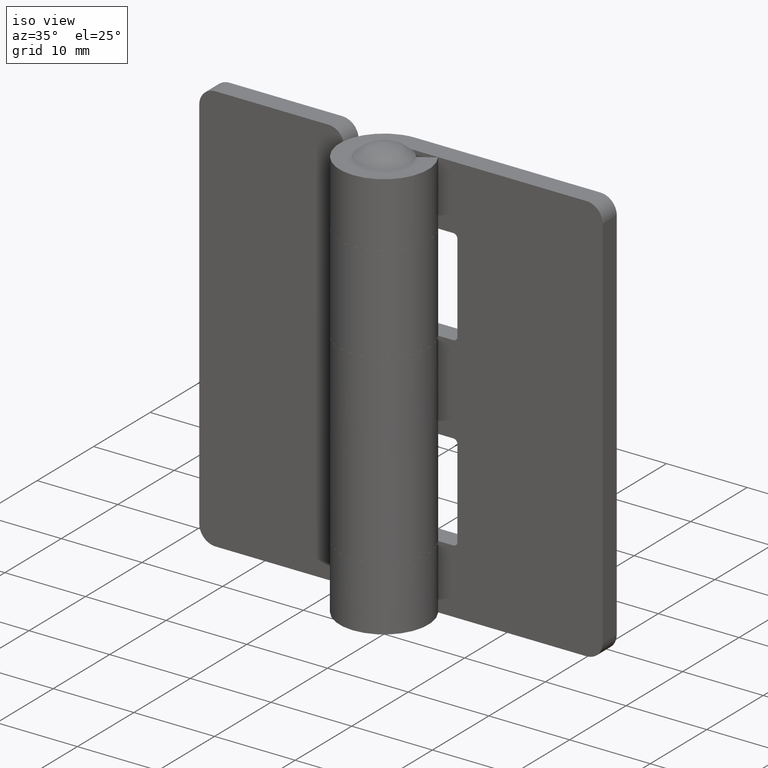
[diagram: clean part render]
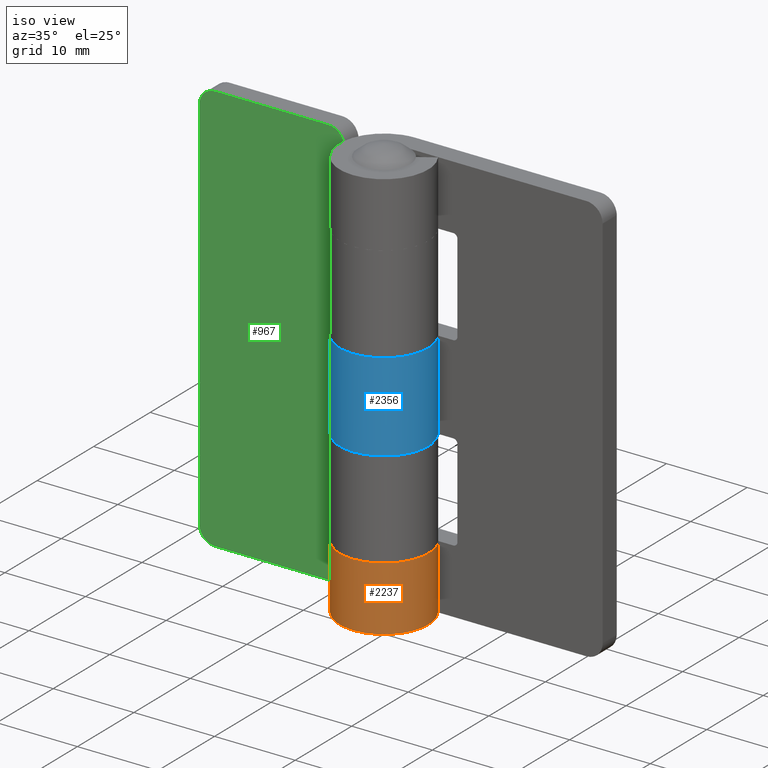
[diagram: same view with three faces highlighted in distinct colors, each labeled with its STEP entity id]
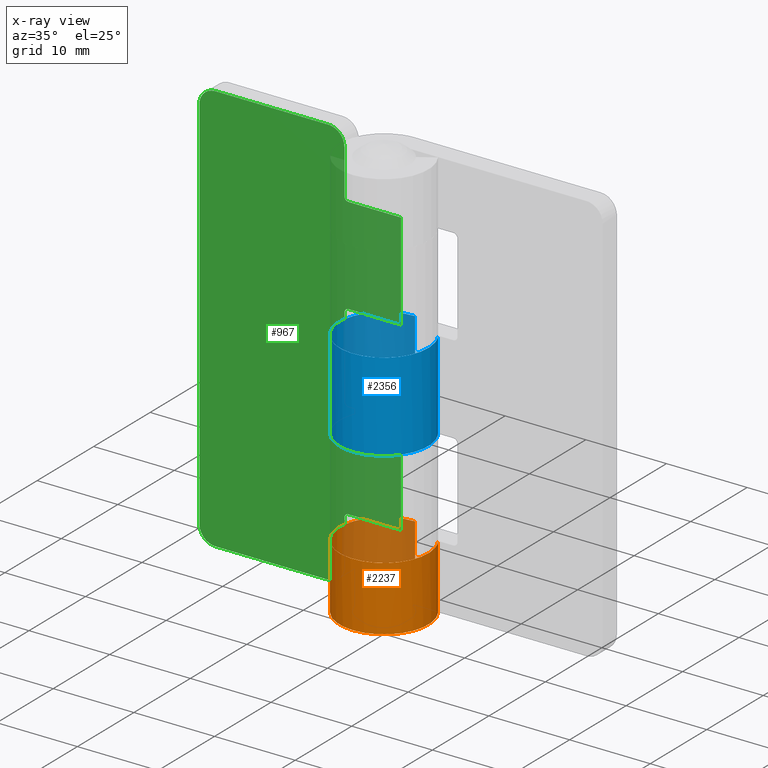
[diagram: x-ray of the same camera — body ghosted, the three highlighted faces saturated]
A machine part, iso view with three faces highlighted in distinct colors.
The next image is the same camera in x-ray (body ghosted, the three faces saturated) — at least one of them is partly hidden behind the body in this view.
Their STEP definitions:

[orange] entity #2237 — the highlighted face is a freeform B-spline surface patch.
#1670=CARTESIAN_POINT('',(-1.010299E-015,5.499999000000000,8.0));
#1671=VERTEX_POINT('',#1670);
#1677=CARTESIAN_POINT('',(4.641927929212170,2.949999000000000,8.0));
#1678=VERTEX_POINT('',#1677);
#1679=CARTESIAN_POINT('',(0.0,5.499999000000000,8.0));
#1680=CARTESIAN_POINT('',(-4.266936746364661,5.499998999999999,8.0));
#1681=CARTESIAN_POINT('',(-5.327423778101053,1.366947288129464,8.0));
#1682=CARTESIAN_POINT('',(-6.387910809837448,-2.766104423741078,8.0));
#1683=CARTESIAN_POINT('',(-2.648112294635560,-4.820528007905462,8.0));
#1684=CARTESIAN_POINT('',(1.091686220566328,-6.874951592069845,8.0));
#1685=CARTESIAN_POINT('',(4.011121749750011,-3.763095973886850,8.0));
#1686=CARTESIAN_POINT('',(6.930557278933692,-0.651240355703858,8.0));
#1687=CARTESIAN_POINT('',(4.641927929212174,2.949998999999997,8.0));
#1695=(BOUNDED_CURVE()B_SPLINE_CURVE(2,(#1679,#1680,#1681,#1682,#1683,#1684,#1685,#1686,#1687),.UNSPECIFIED.,.F.,.U.)B_SPLINE_CURVE_WITH_KNOTS((3,2,2,2,3),(0.0,0.250000000000000,0.500000000000000,0.750000000000000,1.0),.UNSPECIFIED.)CURVE()GEOMETRIC_REPRESENTATION_ITEM()RATIONAL_B_SPLINE_CURVE((1.0,0.790106295303784,1.0,0.790106295303784,1.0,0.790106295303784,1.0,0.790106295303784,1.0))REPRESENTATION_ITEM(''));
#1696=EDGE_CURVE('',#1671,#1678,#1695,.T.);
#1892=CARTESIAN_POINT('',(-1.010300E-015,5.499999000000000,0.0));
#1893=VERTEX_POINT('',#1892);
#1928=CARTESIAN_POINT('',(4.641927929212170,2.949999000000000,0.0));
#1929=VERTEX_POINT('',#1928);
#1935=CARTESIAN_POINT('',(4.641927929212169,2.949999000000004,0.0));
#1936=CARTESIAN_POINT('',(6.930557278933692,-0.651240355703851,0.0));
#1937=CARTESIAN_POINT('',(4.011121749750013,-3.763095973886847,0.0));
#1938=CARTESIAN_POINT('',(1.091686220566334,-6.874951592069840,0.0));
#1939=CARTESIAN_POINT('',(-2.648112294635553,-4.820528007905464,0.0));
#1940=CARTESIAN_POINT('',(-6.387910809837440,-2.766104423741089,0.0));
#1941=CARTESIAN_POINT('',(-5.327423778101057,1.366947288129451,0.0));
#1942=CARTESIAN_POINT('',(-4.266936746364672,5.499999000000002,0.0));
#1943=CARTESIAN_POINT('',(0.0,5.499999000000000,0.0));
#1951=(BOUNDED_CURVE()B_SPLINE_CURVE(2,(#1935,#1936,#1937,#1938,#1939,#1940,#1941,#1942,#1943),.UNSPECIFIED.,.F.,.U.)B_SPLINE_CURVE_WITH_KNOTS((3,2,2,2,3),(0.0,0.250000000000000,0.500000000000000,0.750000000000000,1.0),.UNSPECIFIED.)CURVE()GEOMETRIC_REPRESENTATION_ITEM()RATIONAL_B_SPLINE_CURVE((1.0,0.790106295303784,1.0,0.790106295303784,1.0,0.790106295303784,1.0,0.790106295303784,1.0))REPRESENTATION_ITEM(''));
#1952=EDGE_CURVE('',#1929,#1893,#1951,.T.);
#2179=CARTESIAN_POINT('',(-1.010299E-015,5.499999000000000,8.0));
#2180=CARTESIAN_POINT('',(-1.010300E-015,5.499999000000000,0.0));
#2181=QUASI_UNIFORM_CURVE('',1,(#2179,#2180),.UNSPECIFIED.,.F.,.U.);
#2182=EDGE_CURVE('',#1671,#1893,#2181,.T.);
#2205=CARTESIAN_POINT('',(0.198045498152589,5.496432204681731,8.199999999999999));
#2206=CARTESIAN_POINT('',(0.198045498152589,5.496432204681731,-0.205000000000000));
#2207=CARTESIAN_POINT('',(-6.711916812459321,5.745409518884772,8.199999999999999));
#2208=CARTESIAN_POINT('',(-6.711916812459321,5.745409518884772,-0.205000000000000));
#2209=CARTESIAN_POINT('',(-5.400109546980872,-1.043458614707368,8.199999999999999));
#2210=CARTESIAN_POINT('',(-5.400109546980872,-1.043458614707368,-0.205000000000000));
#2211=CARTESIAN_POINT('',(-4.088302281502422,-7.832326748299510,8.199999999999999));
#2212=CARTESIAN_POINT('',(-4.088302281502422,-7.832326748299510,-0.205000000000000));
#2213=CARTESIAN_POINT('',(2.231475174178850,-5.026977973596508,8.199999999999999));
#2214=CARTESIAN_POINT('',(2.231475174178850,-5.026977973596508,-0.205000000000000));
#2215=CARTESIAN_POINT('',(8.551252629860123,-2.221629198893507,8.199999999999999));
#2216=CARTESIAN_POINT('',(8.551252629860123,-2.221629198893507,-0.205000000000000));
#2217=CARTESIAN_POINT('',(4.396164160633487,3.305106605355213,8.199999999999999));
#2218=CARTESIAN_POINT('',(4.396164160633487,3.305106605355213,-0.205000000000000));
#2226=(BOUNDED_SURFACE()B_SPLINE_SURFACE(1,2,((#2205,#2207,#2209,#2211,#2213,#2215,#2217),(#2206,#2208,#2210,#2212,#2214,#2216,#2218)),.UNSPECIFIED.,.F.,.F.,.U.)B_SPLINE_SURFACE_WITH_KNOTS((2,2),(3,2,2,3),(0.0,8.405000000000001),(0.0,10.611538368615591,21.223076737231182,31.834615105846758),.UNSPECIFIED.)GEOMETRIC_REPRESENTATION_ITEM()RATIONAL_B_SPLINE_SURFACE(((1.0,0.622514636637620,1.0,0.622514636637620,1.0,0.622514636637620,1.0),(1.0,0.622514636637620,1.0,0.622514636637620,1.0,0.622514636637620,1.0)))REPRESENTATION_ITEM('')SURFACE());
#2227=CARTESIAN_POINT('',(4.641927929212170,2.949999000000000,8.0));
#2228=CARTESIAN_POINT('',(4.641927929212170,2.949999000000000,0.0));
#2229=QUASI_UNIFORM_CURVE('',1,(#2227,#2228),.UNSPECIFIED.,.F.,.U.);
#2230=EDGE_CURVE('',#1678,#1929,#2229,.T.);
#2231=ORIENTED_EDGE('',*,*,#2230,.F.);
#2232=ORIENTED_EDGE('',*,*,#1696,.F.);
#2233=ORIENTED_EDGE('',*,*,#2182,.T.);
#2234=ORIENTED_EDGE('',*,*,#1952,.F.);
#2235=EDGE_LOOP('',(#2231,#2232,#2233,#2234));
#2236=FACE_OUTER_BOUND('',#2235,.T.);
#2237=ADVANCED_FACE('',(#2236),#2226,.T.);

[blue] entity #2356 — the highlighted face is a freeform B-spline surface patch.
#1572=CARTESIAN_POINT('',(-1.010299E-015,5.499999000000000,20.0));
#1573=VERTEX_POINT('',#1572);
#1608=CARTESIAN_POINT('',(4.641927929212170,2.949999000000000,20.0));
#1609=VERTEX_POINT('',#1608);
#1615=CARTESIAN_POINT('',(4.641927929212169,2.949999000000004,20.0));
#1616=CARTESIAN_POINT('',(6.930557278933692,-0.651240355703851,20.0));
#1617=CARTESIAN_POINT('',(4.011121749750013,-3.763095973886847,20.0));
#1618=CARTESIAN_POINT('',(1.091686220566334,-6.874951592069840,20.0));
#1619=CARTESIAN_POINT('',(-2.648112294635553,-4.820528007905464,20.0));
#1620=CARTESIAN_POINT('',(-6.387910809837440,-2.766104423741089,20.0));
#1621=CARTESIAN_POINT('',(-5.327423778101057,1.366947288129451,20.0));
#1622=CARTESIAN_POINT('',(-4.266936746364672,5.499999000000002,20.0));
#1623=CARTESIAN_POINT('',(0.0,5.499999000000000,20.0));
#1631=(BOUNDED_CURVE()B_SPLINE_CURVE(2,(#1615,#1616,#1617,#1618,#1619,#1620,#1621,#1622,#1623),.UNSPECIFIED.,.F.,.U.)B_SPLINE_CURVE_WITH_KNOTS((3,2,2,2,3),(0.0,0.250000000000000,0.500000000000000,0.750000000000000,1.0),.UNSPECIFIED.)CURVE()GEOMETRIC_REPRESENTATION_ITEM()RATIONAL_B_SPLINE_CURVE((1.0,0.790106295303784,1.0,0.790106295303784,1.0,0.790106295303784,1.0,0.790106295303784,1.0))REPRESENTATION_ITEM(''));
#1632=EDGE_CURVE('',#1609,#1573,#1631,.T.);
#1740=CARTESIAN_POINT('',(-1.010300E-015,5.499999000000000,31.0));
#1741=VERTEX_POINT('',#1740);
#1747=CARTESIAN_POINT('',(4.641927929212170,2.949999000000000,31.0));
#1748=VERTEX_POINT('',#1747);
#1749=CARTESIAN_POINT('',(0.0,5.499999000000000,31.0));
#1750=CARTESIAN_POINT('',(-4.266936746364661,5.499998999999999,30.999999999999996));
#1751=CARTESIAN_POINT('',(-5.327423778101053,1.366947288129464,31.0));
#1752=CARTESIAN_POINT('',(-6.387910809837448,-2.766104423741078,30.999999999999996));
#1753=CARTESIAN_POINT('',(-2.648112294635560,-4.820528007905462,31.0));
#1754=CARTESIAN_POINT('',(1.091686220566328,-6.874951592069845,30.999999999999996));
#1755=CARTESIAN_POINT('',(4.011121749750011,-3.763095973886850,31.0));
#1756=CARTESIAN_POINT('',(6.930557278933692,-0.651240355703858,30.999999999999996));
#1757=CARTESIAN_POINT('',(4.641927929212174,2.949998999999997,31.0));
#1765=(BOUNDED_CURVE()B_SPLINE_CURVE(2,(#1749,#1750,#1751,#1752,#1753,#1754,#1755,#1756,#1757),.UNSPECIFIED.,.F.,.U.)B_SPLINE_CURVE_WITH_KNOTS((3,2,2,2,3),(0.0,0.250000000000000,0.500000000000000,0.750000000000000,1.0),.UNSPECIFIED.)CURVE()GEOMETRIC_REPRESENTATION_ITEM()RATIONAL_B_SPLINE_CURVE((1.0,0.790106295303784,1.0,0.790106295303784,1.0,0.790106295303784,1.0,0.790106295303784,1.0))REPRESENTATION_ITEM(''));
#1766=EDGE_CURVE('',#1741,#1748,#1765,.T.);
#2076=CARTESIAN_POINT('',(4.641927929212170,2.949999000000000,31.0));
#2077=CARTESIAN_POINT('',(4.641927929212170,2.949999000000000,20.0));
#2078=QUASI_UNIFORM_CURVE('',1,(#2076,#2077),.UNSPECIFIED.,.F.,.U.);
#2079=EDGE_CURVE('',#1748,#1609,#2078,.T.);
#2189=CARTESIAN_POINT('',(-1.010300E-015,5.499999000000000,31.0));
#2190=CARTESIAN_POINT('',(-1.010299E-015,5.499999000000000,20.0));
#2191=QUASI_UNIFORM_CURVE('',1,(#2189,#2190),.UNSPECIFIED.,.F.,.U.);
#2192=EDGE_CURVE('',#1741,#1573,#2191,.T.);
#2328=CARTESIAN_POINT('',(0.198045498152589,5.496432204681731,31.275000000000009));
#2329=CARTESIAN_POINT('',(0.198045498152589,5.496432204681731,19.718124999999990));
#2330=CARTESIAN_POINT('',(-6.711916812459321,5.745409518884772,31.274999999999999));
#2331=CARTESIAN_POINT('',(-6.711916812459321,5.745409518884772,19.718124999999997));
#2332=CARTESIAN_POINT('',(-5.400109546980872,-1.043458614707368,31.275000000000009));
#2333=CARTESIAN_POINT('',(-5.400109546980872,-1.043458614707368,19.718124999999990));
#2334=CARTESIAN_POINT('',(-4.088302281502422,-7.832326748299510,31.274999999999999));
#2335=CARTESIAN_POINT('',(-4.088302281502422,-7.832326748299510,19.718124999999997));
#2336=CARTESIAN_POINT('',(2.231475174178850,-5.026977973596508,31.275000000000009));
#2337=CARTESIAN_POINT('',(2.231475174178850,-5.026977973596508,19.718124999999990));
#2338=CARTESIAN_POINT('',(8.551252629860123,-2.221629198893507,31.274999999999999));
#2339=CARTESIAN_POINT('',(8.551252629860123,-2.221629198893507,19.718124999999997));
#2340=CARTESIAN_POINT('',(4.396164160633487,3.305106605355213,31.275000000000009));
#2341=CARTESIAN_POINT('',(4.396164160633487,3.305106605355213,19.718124999999990));
#2349=(BOUNDED_SURFACE()B_SPLINE_SURFACE(1,2,((#2328,#2330,#2332,#2334,#2336,#2338,#2340),(#2329,#2331,#2333,#2335,#2337,#2339,#2341)),.UNSPECIFIED.,.F.,.F.,.U.)B_SPLINE_SURFACE_WITH_KNOTS((2,2),(3,2,2,3),(0.0,11.556875000000010),(0.0,10.611538368615591,21.223076737231182,31.834615105846758),.UNSPECIFIED.)GEOMETRIC_REPRESENTATION_ITEM()RATIONAL_B_SPLINE_SURFACE(((1.0,0.622514636637620,1.0,0.622514636637620,1.0,0.622514636637620,1.0),(1.0,0.622514636637620,1.0,0.622514636637620,1.0,0.622514636637620,1.0)))REPRESENTATION_ITEM('')SURFACE());
#2350=ORIENTED_EDGE('',*,*,#1632,.F.);
#2351=ORIENTED_EDGE('',*,*,#2079,.F.);
#2352=ORIENTED_EDGE('',*,*,#1766,.F.);
#2353=ORIENTED_EDGE('',*,*,#2192,.T.);
#2354=EDGE_LOOP('',(#2350,#2351,#2352,#2353));
#2355=FACE_OUTER_BOUND('',#2354,.T.);
#2356=ADVANCED_FACE('',(#2355),#2349,.T.);

[green] entity #967 — the highlighted face is a freeform B-spline surface patch.
#58=CARTESIAN_POINT('',(-7.0,2.999999000000000,7.500000000000000));
#59=VERTEX_POINT('',#58);
#60=CARTESIAN_POINT('',(-6.500000000000000,2.999999000000000,8.0));
#61=VERTEX_POINT('',#60);
#62=CARTESIAN_POINT('',(-6.999999999999999,2.999999000000000,7.500000000000000));
#63=CARTESIAN_POINT('',(-6.999999999999999,2.999999000000001,8.0));
#64=CARTESIAN_POINT('',(-6.500000000000000,2.999999000000000,8.0));
#72=(BOUNDED_CURVE()B_SPLINE_CURVE(2,(#62,#63,#64),.UNSPECIFIED.,.F.,.U.)CURVE()GEOMETRIC_REPRESENTATION_ITEM()QUASI_UNIFORM_CURVE()RATIONAL_B_SPLINE_CURVE((1.0,0.707106781186548,1.0))REPRESENTATION_ITEM(''));
#73=EDGE_CURVE('',#59,#61,#72,.T.);
#119=CARTESIAN_POINT('',(-7.0,2.999999000000000,30.500000000000000));
#120=VERTEX_POINT('',#119);
#121=CARTESIAN_POINT('',(-6.500000000000000,2.999999000000000,31.0));
#122=VERTEX_POINT('',#121);
#123=CARTESIAN_POINT('',(-6.999999999999999,2.999999000000000,30.500000000000000));
#124=CARTESIAN_POINT('',(-6.999999999999999,2.999999000000001,31.000000000000007));
#125=CARTESIAN_POINT('',(-6.500000000000000,2.999999000000000,31.0));
#133=(BOUNDED_CURVE()B_SPLINE_CURVE(2,(#123,#124,#125),.UNSPECIFIED.,.F.,.U.)CURVE()GEOMETRIC_REPRESENTATION_ITEM()QUASI_UNIFORM_CURVE()RATIONAL_B_SPLINE_CURVE((1.0,0.707106781186548,1.0))REPRESENTATION_ITEM(''));
#134=EDGE_CURVE('',#120,#122,#133,.T.);
#180=CARTESIAN_POINT('',(-6.500000000000000,2.999999000000000,20.0));
#181=VERTEX_POINT('',#180);
#182=CARTESIAN_POINT('',(-7.0,2.999999000000000,20.500000000000000));
#183=VERTEX_POINT('',#182);
#184=CARTESIAN_POINT('',(-6.500000000000000,2.999999000000000,20.0));
#185=CARTESIAN_POINT('',(-6.999999999999999,2.999999000000001,19.999999999999996));
#186=CARTESIAN_POINT('',(-6.999999999999999,2.999999000000000,20.500000000000000));
#194=(BOUNDED_CURVE()B_SPLINE_CURVE(2,(#184,#185,#186),.UNSPECIFIED.,.F.,.U.)CURVE()GEOMETRIC_REPRESENTATION_ITEM()QUASI_UNIFORM_CURVE()RATIONAL_B_SPLINE_CURVE((1.0,0.707106781186548,1.0))REPRESENTATION_ITEM(''));
#195=EDGE_CURVE('',#181,#183,#194,.T.);
#241=CARTESIAN_POINT('',(-6.500000000000000,2.999999000000000,43.0));
#242=VERTEX_POINT('',#241);
#243=CARTESIAN_POINT('',(-7.0,2.999999000000000,43.500000000000000));
#244=VERTEX_POINT('',#243);
#245=CARTESIAN_POINT('',(-6.500000000000000,2.999999000000000,43.0));
#246=CARTESIAN_POINT('',(-6.999999999999999,2.999999000000001,42.999999999999993));
#247=CARTESIAN_POINT('',(-6.999999999999999,2.999999000000000,43.500000000000000));
#255=(BOUNDED_CURVE()B_SPLINE_CURVE(2,(#245,#246,#247),.UNSPECIFIED.,.F.,.U.)CURVE()GEOMETRIC_REPRESENTATION_ITEM()QUASI_UNIFORM_CURVE()RATIONAL_B_SPLINE_CURVE((1.0,0.707106781186548,1.0))REPRESENTATION_ITEM(''));
#256=EDGE_CURVE('',#242,#244,#255,.T.);
#302=CARTESIAN_POINT('',(-7.0,2.999999000000000,49.0));
#303=VERTEX_POINT('',#302);
#304=CARTESIAN_POINT('',(-9.0,2.999999000000000,51.0));
#305=VERTEX_POINT('',#304);
#306=CARTESIAN_POINT('',(-6.999999999999999,2.999999000000000,49.0));
#307=CARTESIAN_POINT('',(-6.999999999999999,2.999999000000001,51.000000000000007));
#308=CARTESIAN_POINT('',(-9.0,2.999999000000000,51.000000000000007));
#316=(BOUNDED_CURVE()B_SPLINE_CURVE(2,(#306,#307,#308),.UNSPECIFIED.,.F.,.U.)CURVE()GEOMETRIC_REPRESENTATION_ITEM()QUASI_UNIFORM_CURVE()RATIONAL_B_SPLINE_CURVE((1.0,0.707106781186548,1.0))REPRESENTATION_ITEM(''));
#317=EDGE_CURVE('',#303,#305,#316,.T.);
#363=CARTESIAN_POINT('',(-9.0,2.999999000000000,0.0));
#364=VERTEX_POINT('',#363);
#365=CARTESIAN_POINT('',(-7.0,2.999999000000000,2.0));
#366=VERTEX_POINT('',#365);
#367=CARTESIAN_POINT('',(-9.0,2.999999000000000,0.0));
#368=CARTESIAN_POINT('',(-6.999999999999999,2.999999000000001,0.0));
#369=CARTESIAN_POINT('',(-6.999999999999999,2.999999000000000,2.0));
#377=(BOUNDED_CURVE()B_SPLINE_CURVE(2,(#367,#368,#369),.UNSPECIFIED.,.F.,.U.)CURVE()GEOMETRIC_REPRESENTATION_ITEM()QUASI_UNIFORM_CURVE()RATIONAL_B_SPLINE_CURVE((1.0,0.707106781186548,1.0))REPRESENTATION_ITEM(''));
#378=EDGE_CURVE('',#364,#366,#377,.T.);
#424=CARTESIAN_POINT('',(-23.0,2.999999000000000,51.0));
#425=VERTEX_POINT('',#424);
#426=CARTESIAN_POINT('',(-25.0,2.999999000000000,49.0));
#427=VERTEX_POINT('',#426);
#428=CARTESIAN_POINT('',(-23.0,2.999999000000000,51.000000000000007));
#429=CARTESIAN_POINT('',(-25.0,2.999999000000001,51.000000000000007));
#430=CARTESIAN_POINT('',(-25.0,2.999999000000000,49.0));
#438=(BOUNDED_CURVE()B_SPLINE_CURVE(2,(#428,#429,#430),.UNSPECIFIED.,.F.,.U.)CURVE()GEOMETRIC_REPRESENTATION_ITEM()QUASI_UNIFORM_CURVE()RATIONAL_B_SPLINE_CURVE((1.0,0.707106781186548,1.0))REPRESENTATION_ITEM(''));
#439=EDGE_CURVE('',#425,#427,#438,.T.);
#485=CARTESIAN_POINT('',(-25.0,2.999999000000000,2.0));
#486=VERTEX_POINT('',#485);
#487=CARTESIAN_POINT('',(-23.0,2.999999000000000,0.0));
#488=VERTEX_POINT('',#487);
#489=CARTESIAN_POINT('',(-25.0,2.999999000000000,2.0));
#490=CARTESIAN_POINT('',(-25.0,2.999999000000001,0.0));
#491=CARTESIAN_POINT('',(-23.0,2.999999000000000,0.0));
#499=(BOUNDED_CURVE()B_SPLINE_CURVE(2,(#489,#490,#491),.UNSPECIFIED.,.F.,.U.)CURVE()GEOMETRIC_REPRESENTATION_ITEM()QUASI_UNIFORM_CURVE()RATIONAL_B_SPLINE_CURVE((1.0,0.707106781186548,1.0))REPRESENTATION_ITEM(''));
#500=EDGE_CURVE('',#486,#488,#499,.T.);
#545=CARTESIAN_POINT('',(1.836937E-016,2.999999000000000,20.0));
#546=VERTEX_POINT('',#545);
#547=CARTESIAN_POINT('',(-6.500000000000000,2.999999000000000,20.0));
#548=CARTESIAN_POINT('',(1.836937E-016,2.999999000000000,20.0));
#549=QUASI_UNIFORM_CURVE('',1,(#547,#548),.UNSPECIFIED.,.F.,.U.);
#550=EDGE_CURVE('',#181,#546,#549,.T.);
#607=CARTESIAN_POINT('',(1.836937E-016,2.999999000000000,31.0));
#608=VERTEX_POINT('',#607);
#609=CARTESIAN_POINT('',(1.836937E-016,2.999999000000000,31.0));
#610=CARTESIAN_POINT('',(-6.500000000000000,2.999999000000000,31.0));
#611=QUASI_UNIFORM_CURVE('',1,(#609,#610),.UNSPECIFIED.,.F.,.U.);
#612=EDGE_CURVE('',#608,#122,#611,.T.);
#677=CARTESIAN_POINT('',(-7.0,2.999999000000000,30.500000000000000));
#678=CARTESIAN_POINT('',(-7.0,2.999999000000000,20.500000000000000));
#679=QUASI_UNIFORM_CURVE('',1,(#677,#678),.UNSPECIFIED.,.F.,.U.);
#680=EDGE_CURVE('',#120,#183,#679,.T.);
#697=CARTESIAN_POINT('',(1.836937E-016,2.999999000000000,8.0));
#698=VERTEX_POINT('',#697);
#699=CARTESIAN_POINT('',(-6.500000000000000,2.999999000000000,8.0));
#700=CARTESIAN_POINT('',(1.836937E-016,2.999999000000000,8.0));
#701=QUASI_UNIFORM_CURVE('',1,(#699,#700),.UNSPECIFIED.,.F.,.U.);
#702=EDGE_CURVE('',#61,#698,#701,.T.);
#773=CARTESIAN_POINT('',(-7.0,2.999999000000000,2.0));
#774=CARTESIAN_POINT('',(-7.0,2.999999000000000,7.500000000000000));
#775=QUASI_UNIFORM_CURVE('',1,(#773,#774),.UNSPECIFIED.,.F.,.U.);
#776=EDGE_CURVE('',#366,#59,#775,.T.);
#795=CARTESIAN_POINT('',(1.836937E-016,2.999999000000000,43.0));
#796=VERTEX_POINT('',#795);
#797=CARTESIAN_POINT('',(1.836937E-016,2.999999000000000,43.0));
#798=CARTESIAN_POINT('',(-6.500000000000000,2.999999000000000,43.0));
#799=QUASI_UNIFORM_CURVE('',1,(#797,#798),.UNSPECIFIED.,.F.,.U.);
#800=EDGE_CURVE('',#796,#242,#799,.T.);
#857=CARTESIAN_POINT('',(-7.0,2.999999000000000,43.500000000000000));
#858=CARTESIAN_POINT('',(-7.0,2.999999000000000,49.0));
#859=QUASI_UNIFORM_CURVE('',1,(#857,#858),.UNSPECIFIED.,.F.,.U.);
#860=EDGE_CURVE('',#244,#303,#859,.T.);
#883=CARTESIAN_POINT('',(-25.0,2.999999000000000,49.0));
#884=CARTESIAN_POINT('',(-25.0,2.999999000000000,2.0));
#885=QUASI_UNIFORM_CURVE('',1,(#883,#884),.UNSPECIFIED.,.F.,.U.);
#886=EDGE_CURVE('',#427,#486,#885,.T.);
#897=CARTESIAN_POINT('',(-9.0,2.999999000000000,51.0));
#898=CARTESIAN_POINT('',(-23.0,2.999999000000000,51.0));
#899=QUASI_UNIFORM_CURVE('',1,(#897,#898),.UNSPECIFIED.,.F.,.U.);
#900=EDGE_CURVE('',#305,#425,#899,.T.);
#923=CARTESIAN_POINT('',(-9.0,2.999999000000000,0.0));
#924=CARTESIAN_POINT('',(-23.0,2.999999000000000,0.0));
#925=QUASI_UNIFORM_CURVE('',1,(#923,#924),.UNSPECIFIED.,.F.,.U.);
#926=EDGE_CURVE('',#364,#488,#925,.T.);
#932=CARTESIAN_POINT('',(-26.248749951545150,2.999999000000000,53.547449901152113));
#933=CARTESIAN_POINT('',(-26.248749951545150,2.999999000000000,-2.547451269078700));
#934=CARTESIAN_POINT('',(1.248750622097403,2.999999000000000,53.547449901152113));
#935=CARTESIAN_POINT('',(1.248750622097403,2.999999000000000,-2.547451269078700));
#936=B_SPLINE_SURFACE_WITH_KNOTS('',1,1,((#932,#934),(#933,#935)),.UNSPECIFIED.,.F.,.F.,.U.,(2,2),(2,2),(0.0,56.094901170230813),(0.0,27.497500573642551),.UNSPECIFIED.);
#937=ORIENTED_EDGE('',*,*,#926,.F.);
#938=ORIENTED_EDGE('',*,*,#378,.T.);
#939=ORIENTED_EDGE('',*,*,#776,.T.);
#940=ORIENTED_EDGE('',*,*,#73,.T.);
#941=ORIENTED_EDGE('',*,*,#702,.T.);
#942=CARTESIAN_POINT('',(1.836937E-016,2.999999000000000,20.0));
#943=CARTESIAN_POINT('',(1.836937E-016,2.999999000000000,8.0));
#944=QUASI_UNIFORM_CURVE('',1,(#942,#943),.UNSPECIFIED.,.F.,.U.);
#945=EDGE_CURVE('',#546,#698,#944,.T.);
#946=ORIENTED_EDGE('',*,*,#945,.F.);
#947=ORIENTED_EDGE('',*,*,#550,.F.);
#948=ORIENTED_EDGE('',*,*,#195,.T.);
#949=ORIENTED_EDGE('',*,*,#680,.F.);
#950=ORIENTED_EDGE('',*,*,#134,.T.);
#951=ORIENTED_EDGE('',*,*,#612,.F.);
#952=CARTESIAN_POINT('',(1.836937E-016,2.999999000000000,43.0));
#953=CARTESIAN_POINT('',(1.836937E-016,2.999999000000000,31.0));
#954=QUASI_UNIFORM_CURVE('',1,(#952,#953),.UNSPECIFIED.,.F.,.U.);
#955=EDGE_CURVE('',#796,#608,#954,.T.);
#956=ORIENTED_EDGE('',*,*,#955,.F.);
#957=ORIENTED_EDGE('',*,*,#800,.T.);
#958=ORIENTED_EDGE('',*,*,#256,.T.);
#959=ORIENTED_EDGE('',*,*,#860,.T.);
#960=ORIENTED_EDGE('',*,*,#317,.T.);
#961=ORIENTED_EDGE('',*,*,#900,.T.);
#962=ORIENTED_EDGE('',*,*,#439,.T.);
#963=ORIENTED_EDGE('',*,*,#886,.T.);
#964=ORIENTED_EDGE('',*,*,#500,.T.);
#965=EDGE_LOOP('',(#937,#938,#939,#940,#941,#946,#947,#948,#949,#950,#951,#956,#957,#958,#959,#960,#961,#962,#963,#964));
#966=FACE_OUTER_BOUND('',#965,.T.);
#967=ADVANCED_FACE('',(#966),#936,.T.);